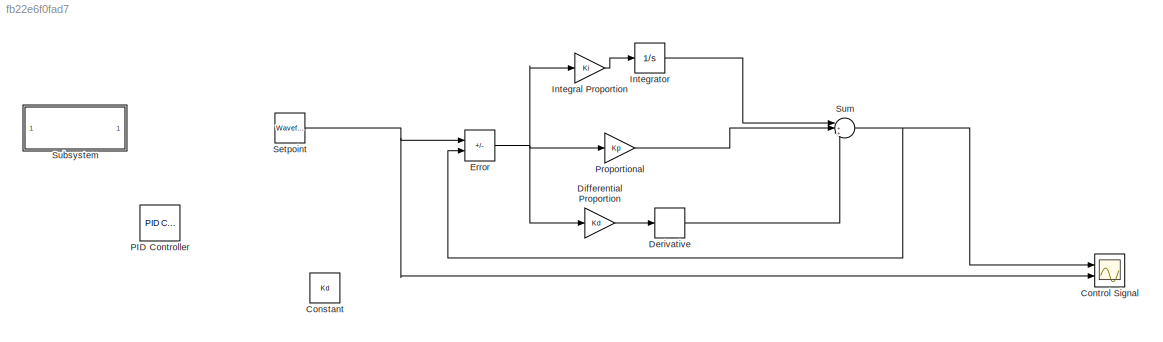
MODEL slx_fb22e6f0fad7
KIND model
CONFIG AbsTol = auto
CONFIG EnableMultiTasking = off
CONFIG FixedStep = auto
CONFIG MaxStep = auto
CONFIG MinStep = auto
CONFIG RelTol = 1e-3
CONFIG SampleTimeConstraint = Unconstrained
CONFIG SolverName = VariableStepAuto
CONFIG StartTime = 0.0
CONFIG StopTime = 10.0
WORKSPACE source: mxarray member
WORKSPACE Kd = 0.864
WORKSPACE Ki: Simulink.Parameter (value not decoded)
WORKSPACE Kp = 0.223
BLOCK [Constant] Constant
  Value = Kd
BLOCK [Scope] Control Signal
  Floating = off
  NumInputPorts = 2
  Ports = [2]
  ScopeSpecificationString = Simulink.scopes.TimeScopeBlockCfg('CurrentConfiguration', extmgr.ConfigurationSet(extmgr.Configuration('Core','General UI',true),extmgr.Configuration('Core','Source UI',true),extmgr.Configuration('Sources','WiredSimulink',true),extmgr.Configuration('Visuals','Time Domain',true,'SerializedDisplays',{struct('MinYLimReal','-1.99796','MaxYLimReal','1.99915','YLabelReal','','MinYLimMag','0.00000','MaxY...<+1438ch>
BLOCK [Derivative] Derivative
BLOCK [Gain] Differential Proportion
  Gain = Kd
BLOCK [Sum] Error
  IconShape = rectangular
  Inputs = +-
  Ports = [2, 1]
BLOCK [Gain] Integral Proportion
  Gain = Ki
BLOCK [Integrator] Integrator
  Ports = [1, 1]
BLOCK [Reference] PID Controller  REF=slpidlib/PID Controller
  Ports = [1, 1]
  SourceBlock = slpidlib/PID Controller
  SourceProductBaseCode = SL
  SourceType = PID 1dof
BLOCK [Gain] Proportional
  Gain = Kp
BLOCK [Reference] Setpoint  REF=simulink/Sources/Waveform
Generator
  Ports = [0, 1]
  SourceBlock = simulink/Sources/Waveform\nGenerator
  SourceProductBaseCode = SL
  SourceType = WaveformGenerator
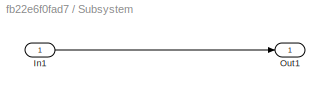
BLOCK [SubSystem] Subsystem
  Ports = [1, 1]
  RequestExecContextInheritance = off
BLOCK [Inport] Subsystem/In1
BLOCK [Outport] Subsystem/Out1
BLOCK [Sum] Sum
  Inputs = |+++
  Ports = [3, 1]
LINE Derivative:1 -> Sum:3
LINE Differential Proportion:1 -> Derivative:1
NET Error:1 -> Differential Proportion:1, Integral Proportion:1, Proportional:1
LINE Integral Proportion:1 -> Integrator:1
LINE Integrator:1 -> Sum:1
LINE Proportional:1 -> Sum:2
NET Setpoint:1 -> Control Signal:2, Error:1
LINE Subsystem/In1:1 -> Subsystem/Out1:1
NET Sum:1 -> Control Signal:1, Error:2
note: NET lines group one-source signal fan-out (src -> all destinations, sorted); 1:1 wires keep LINE
